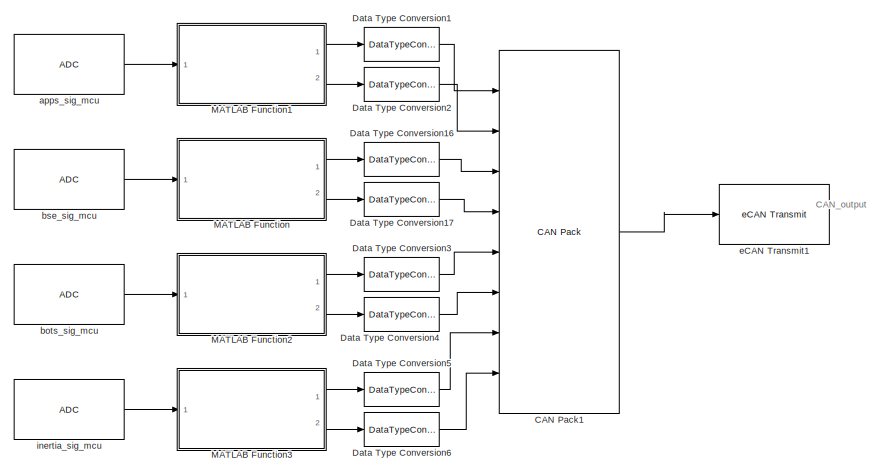
[diagram: root canvas - part 1/2, middle right region]
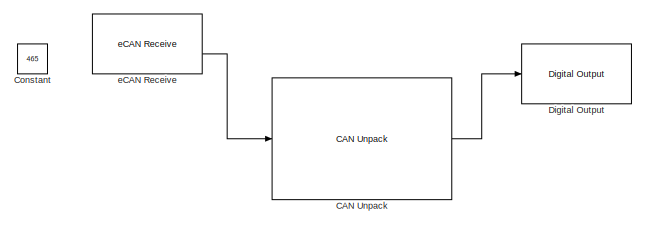
[diagram: root canvas - part 2/2, bottom left region]
MODEL slx_f2769b524abd
KIND model
CONFIG AbsTol = auto
CONFIG EnableMultiTasking = on
CONFIG FixedStep = auto
CONFIG MaxStep = auto
CONFIG MinStep = auto
CONFIG RelTol = 1e-3
CONFIG SampleTimeConstraint = Unconstrained
CONFIG SolverName = FixedStepAuto
CONFIG StartTime = 0.0
CONFIG StopTime = Inf
BLOCK [Reference] CAN Pack1  REF=canmsglib/CAN Pack
  Ports = [8, 1]
  SourceBlock = canmsglib/CAN Pack
  SourceProductBaseCode = ME,XP,VN
  SourceType = CAN Pack
BLOCK [Reference] CAN Unpack  REF=canmsglib/CAN Unpack
  Commented = on
  Ports = [1, 1]
  SourceBlock = canmsglib/CAN Unpack
  SourceProductBaseCode = XP,ME,VN
  SourceType = CAN Unpack
BLOCK [Constant] Constant
  Commented = on
  Value = 465
BLOCK [DataTypeConversion] Data Type Conversion1
  RndMeth = Floor
  SaturateOnIntegerOverflow = off
BLOCK [DataTypeConversion] Data Type Conversion16
  RndMeth = Floor
  SaturateOnIntegerOverflow = off
BLOCK [DataTypeConversion] Data Type Conversion17
  RndMeth = Floor
  SaturateOnIntegerOverflow = off
BLOCK [DataTypeConversion] Data Type Conversion2
  RndMeth = Floor
  SaturateOnIntegerOverflow = off
BLOCK [DataTypeConversion] Data Type Conversion3
  RndMeth = Floor
  SaturateOnIntegerOverflow = off
BLOCK [DataTypeConversion] Data Type Conversion4
  RndMeth = Floor
  SaturateOnIntegerOverflow = off
BLOCK [DataTypeConversion] Data Type Conversion5
  RndMeth = Floor
  SaturateOnIntegerOverflow = off
BLOCK [DataTypeConversion] Data Type Conversion6
  RndMeth = Floor
  SaturateOnIntegerOverflow = off
BLOCK [Reference] Digital Output  REF=c2837xDlib/Digital Output
  Commented = on
  Ports = [1]
  SourceBlock = c2837xDlib/Digital Output
  SourceProductBaseCode = TIC2000
  SourceType = F2837x GPIO Digital Output
  UserDataPersistent = on
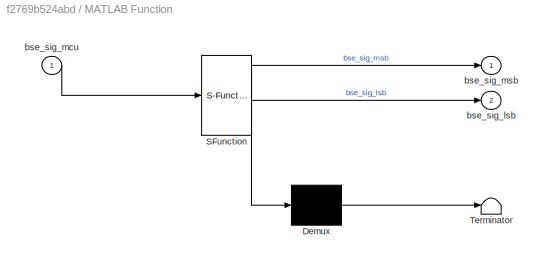
BLOCK [SubSystem] MATLAB Function
  ErrorFcn = Stateflow.Translate.translate
  PermitHierarchicalResolution = ExplicitOnly
  Ports = [1, 2]
  RequestExecContextInheritance = off
  SFBlockType = MATLAB Function
  TreatAsAtomicUnit = on
BLOCK [Demux] MATLAB Function/ Demux 
  Outputs = 1
  Ports = [1, 1]
BLOCK [S-Function] MATLAB Function/ SFunction 
  EnableBusSupport = on
  FunctionName = sf_sfun
  PortCounts = [1 3]
  Ports = [1, 3]
  SFcnIsStateOwnerBlock = off
  SFunctionDeploymentMode = off
  Tag = Stateflow S-Function 2
BLOCK [Terminator] MATLAB Function/ Terminator 
BLOCK [Outport] MATLAB Function/bse_sig_lsb
  Port = 2
BLOCK [Inport] MATLAB Function/bse_sig_mcu
BLOCK [Outport] MATLAB Function/bse_sig_msb
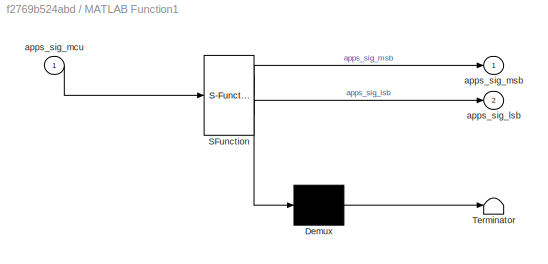
BLOCK [SubSystem] MATLAB Function1
  ErrorFcn = Stateflow.Translate.translate
  PermitHierarchicalResolution = ExplicitOnly
  Ports = [1, 2]
  RequestExecContextInheritance = off
  SFBlockType = MATLAB Function
  TreatAsAtomicUnit = on
BLOCK [Demux] MATLAB Function1/ Demux 
  Outputs = 1
  Ports = [1, 1]
BLOCK [S-Function] MATLAB Function1/ SFunction 
  EnableBusSupport = on
  FunctionName = sf_sfun
  PortCounts = [1 3]
  Ports = [1, 3]
  SFcnIsStateOwnerBlock = off
  SFunctionDeploymentMode = off
  Tag = Stateflow S-Function 1
BLOCK [Terminator] MATLAB Function1/ Terminator 
BLOCK [Outport] MATLAB Function1/apps_sig_lsb
  Port = 2
BLOCK [Inport] MATLAB Function1/apps_sig_mcu
BLOCK [Outport] MATLAB Function1/apps_sig_msb
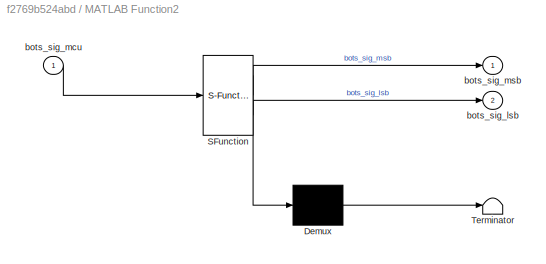
BLOCK [SubSystem] MATLAB Function2
  ErrorFcn = Stateflow.Translate.translate
  PermitHierarchicalResolution = ExplicitOnly
  Ports = [1, 2]
  RequestExecContextInheritance = off
  SFBlockType = MATLAB Function
  TreatAsAtomicUnit = on
BLOCK [Demux] MATLAB Function2/ Demux 
  Outputs = 1
  Ports = [1, 1]
BLOCK [S-Function] MATLAB Function2/ SFunction 
  EnableBusSupport = on
  FunctionName = sf_sfun
  PortCounts = [1 3]
  Ports = [1, 3]
  SFcnIsStateOwnerBlock = off
  SFunctionDeploymentMode = off
  Tag = Stateflow S-Function 3
BLOCK [Terminator] MATLAB Function2/ Terminator 
BLOCK [Outport] MATLAB Function2/bots_sig_lsb
  Port = 2
BLOCK [Inport] MATLAB Function2/bots_sig_mcu
BLOCK [Outport] MATLAB Function2/bots_sig_msb
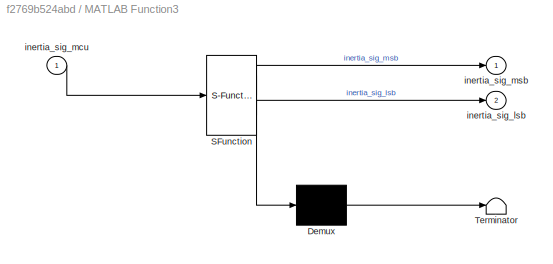
BLOCK [SubSystem] MATLAB Function3
  ErrorFcn = Stateflow.Translate.translate
  PermitHierarchicalResolution = ExplicitOnly
  Ports = [1, 2]
  RequestExecContextInheritance = off
  SFBlockType = MATLAB Function
  TreatAsAtomicUnit = on
BLOCK [Demux] MATLAB Function3/ Demux 
  Outputs = 1
  Ports = [1, 1]
BLOCK [S-Function] MATLAB Function3/ SFunction 
  EnableBusSupport = on
  FunctionName = sf_sfun
  PortCounts = [1 3]
  Ports = [1, 3]
  SFcnIsStateOwnerBlock = off
  SFunctionDeploymentMode = off
  Tag = Stateflow S-Function 4
BLOCK [Terminator] MATLAB Function3/ Terminator 
BLOCK [Outport] MATLAB Function3/inertia_sig_lsb
  Port = 2
BLOCK [Inport] MATLAB Function3/inertia_sig_mcu
BLOCK [Outport] MATLAB Function3/inertia_sig_msb
BLOCK [Reference] apps_sig_mcu  REF=c2802xlib/ADC
  Ports = [0, 1]
  SourceBlock = c2802xlib/ADC
  SourceProductBaseCode = TIC2000
  SourceType = ADC Type 3-5
  UserDataPersistent = on
BLOCK [Reference] bots_sig_mcu  REF=c2802xlib/ADC
  Ports = [0, 1]
  SourceBlock = c2802xlib/ADC
  SourceProductBaseCode = TIC2000
  SourceType = ADC Type 3-5
  UserDataPersistent = on
BLOCK [Reference] bse_sig_mcu  REF=c2802xlib/ADC
  Ports = [0, 1]
  SourceBlock = c2802xlib/ADC
  SourceProductBaseCode = TIC2000
  SourceType = ADC Type 3-5
  UserDataPersistent = on
BLOCK [Reference] eCAN Receive  REF=c280xlib/eCAN Receive
  Commented = on
  Ports = [0, 2]
  SourceBlock = c280xlib/eCAN Receive
  SourceProductBaseCode = TIC2000
  SourceType = C28x eCAN Receive
BLOCK [Reference] eCAN Transmit1  REF=c280xlib/eCAN Transmit
  Ports = [1]
  SourceBlock = c280xlib/eCAN Transmit
  SourceProductBaseCode = TIC2000
  SourceType = C28x eCAN Transmit
BLOCK [Reference] inertia_sig_mcu  REF=c2802xlib/ADC
  Ports = [0, 1]
  SourceBlock = c2802xlib/ADC
  SourceProductBaseCode = TIC2000
  SourceType = ADC Type 3-5
  UserDataPersistent = on
ANNOTATION (root): CAN_output
LINE CAN Pack1:1 -> eCAN Transmit1:1
LINE CAN Unpack:1 -> Digital Output:1
LINE Data Type Conversion16:1 -> CAN Pack1:3
LINE Data Type Conversion17:1 -> CAN Pack1:4
LINE Data Type Conversion1:1 -> CAN Pack1:1
LINE Data Type Conversion2:1 -> CAN Pack1:2
LINE Data Type Conversion3:1 -> CAN Pack1:5
LINE Data Type Conversion4:1 -> CAN Pack1:6
LINE Data Type Conversion5:1 -> CAN Pack1:7
LINE Data Type Conversion6:1 -> CAN Pack1:8
LINE MATLAB Function1:1 -> Data Type Conversion1:1
LINE MATLAB Function1:2 -> Data Type Conversion2:1
LINE MATLAB Function2:1 -> Data Type Conversion3:1
LINE MATLAB Function2:2 -> Data Type Conversion4:1
LINE MATLAB Function3:1 -> Data Type Conversion5:1
LINE MATLAB Function3:2 -> Data Type Conversion6:1
LINE MATLAB Function:1 -> Data Type Conversion16:1
LINE MATLAB Function:2 -> Data Type Conversion17:1
LINE apps_sig_mcu:1 -> MATLAB Function1:1
LINE bots_sig_mcu:1 -> MATLAB Function2:1
LINE bse_sig_mcu:1 -> MATLAB Function:1
LINE eCAN Receive:2 -> CAN Unpack:1
LINE inertia_sig_mcu:1 -> MATLAB Function3:1
CHART MATLAB Function1 states=1 transitions=1
  STATE_LABEL 'eML_blk_kernel()'
  STATE_LABEL 'SCRIPT:\nfunction [apps_sig_msb, apps_sig_lsb]= fcn(apps_sig_mcu)\n%#codegen\n\n%Note: ADC output is in uint16. Performing operations with this produces an integer, so it is first converted to a double to allow for decimals.\napps_sig_msb = floor(double(apps_sig_mcu) / 256); %Every time the line below loops, this increments by 1. floor = round down.\napps_sig_lsb = rem(apps_sig_mcu,256); %Counts up to 2...<+49ch>'
CHART MATLAB Function states=1 transitions=1
  STATE_LABEL 'eML_blk_kernel()'
  STATE_LABEL 'SCRIPT:\nfunction [bse_sig_msb, bse_sig_lsb]= fcn(bse_sig_mcu)\n%#codegen\n\n%Note: ADC output is in uint16. Performing operations with this produces an integer, so it is first converted to a double to allow for decimals.\nbse_sig_msb = floor(double(bse_sig_mcu) / 256); %Every time the line below loops, this increments by 1. floor = round down.\nbse_sig_lsb = rem(bse_sig_mcu,256); %Counts up to 256 then...<+42ch>'
CHART MATLAB Function2 states=1 transitions=1
  STATE_LABEL 'eML_blk_kernel()'
  STATE_LABEL 'SCRIPT:\nfunction [bots_sig_msb, bots_sig_lsb]= fcn(bots_sig_mcu)\n%#codegen\n\n%Note: ADC output is in uint16. Performing operations with this produces an integer, so it is first converted to a double to allow for decimals.\nbots_sig_msb = floor(double(bots_sig_mcu) / 256); %Every time the line below loops, this increments by 1. floor = round down.\nbots_sig_lsb = rem(bots_sig_mcu,256); %Counts up to 2...<+49ch>'
CHART MATLAB Function3 states=1 transitions=1
  STATE_LABEL 'eML_blk_kernel()'
  STATE_LABEL 'SCRIPT:\nfunction [inertia_sig_msb, inertia_sig_lsb]= fcn(inertia_sig_mcu)\n%#codegen\n\n%Note: ADC output is in uint16. Performing operations with this produces an integer, so it is first converted to a double to allow for decimals.\ninertia_sig_msb = floor(double(inertia_sig_mcu) / 256); %Every time the line below loops, this increments by 1. floor = round down.\ninertia_sig_lsb = rem(inertia_sig_mcu,...<+70ch>'
CHART  states=0 transitions=0
CHART  states=0 transitions=0
CHART  states=0 transitions=0
CHART  states=0 transitions=0
